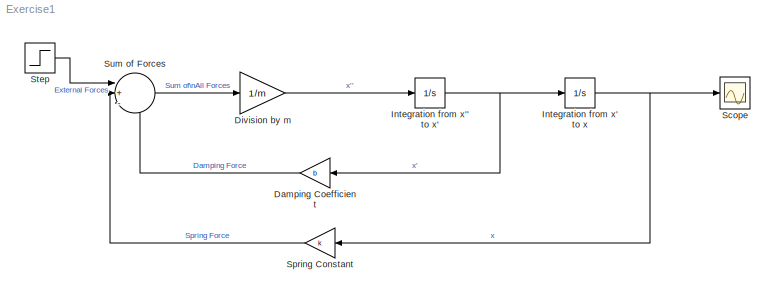
MODEL Exercise1
KIND model
BLOCK [Gain] Damping Coefficient
  Gain = b
  OutDataType = sfix(16)
  OutDataTypeMode = Inherit via internal rule
  OutDataTypeStr = Inherit: Inherit via internal rule
  OutScaling = 2^0
  ParamDataTypeStr = Inherit: Inherit via internal rule
  ParameterDataType = sfix(16)
  ParameterDataTypeMode = Inherit via internal rule
  ParameterScaling = 2^0
  SaturateOnIntegerOverflow = off
BLOCK [Gain] Division by m
  Gain = 1/m
  OutDataType = sfix(16)
  OutDataTypeMode = Inherit via internal rule
  OutDataTypeStr = Inherit: Inherit via internal rule
  OutScaling = 2^0
  ParamDataTypeStr = Inherit: Inherit via internal rule
  ParameterDataType = sfix(16)
  ParameterDataTypeMode = Inherit via internal rule
  ParameterScaling = 2^0
  SaturateOnIntegerOverflow = off
BLOCK [Integrator] Integration from x' to x
  Ports = [1, 1]
BLOCK [Integrator] Integration from x'' to x'
  Ports = [1, 1]
BLOCK [Scope] Scope
  DataFormat = StructureWithTime
  Floating = off
  NumInputPorts = 1
  Ports = [1]
  SampleTime = 0
BLOCK [Gain] Spring Constant
  Gain = k
  OutDataType = sfix(16)
  OutDataTypeMode = Inherit via internal rule
  OutDataTypeStr = Inherit: Inherit via internal rule
  OutScaling = 2^0
  ParamDataTypeStr = Inherit: Inherit via internal rule
  ParameterDataType = sfix(16)
  ParameterDataTypeMode = Inherit via internal rule
  ParameterScaling = 2^0
  SaturateOnIntegerOverflow = off
BLOCK [Step] Step
  After = 4
  SampleTime = 0
  Time = 0
BLOCK [Sum] Sum of Forces
  IconShape = round
  InputSameDT = off
  Inputs = |+--
  OutDataType = sfix(16)
  OutDataTypeMode = Inherit via internal rule
  OutDataTypeStr = Inherit: Inherit via internal rule
  OutScaling = 2^0
  Ports = [3, 1]
  SaturateOnIntegerOverflow = off
LINE Damping Coefficient:1 -> Sum of Forces:3
LINE Division by m:1 -> Integration from x'' to x':1
NET Integration from x' to x:1 -> Scope:1, Spring Constant:1
NET Integration from x'' to x':1 -> Damping Coefficient:1, Integration from x' to x:1
LINE Spring Constant:1 -> Sum of Forces:2
LINE Step:1 -> Sum of Forces:1
LINE Sum of Forces:1 -> Division by m:1
note: NET lines group one-source signal fan-out (src -> all destinations, sorted); 1:1 wires keep LINE
